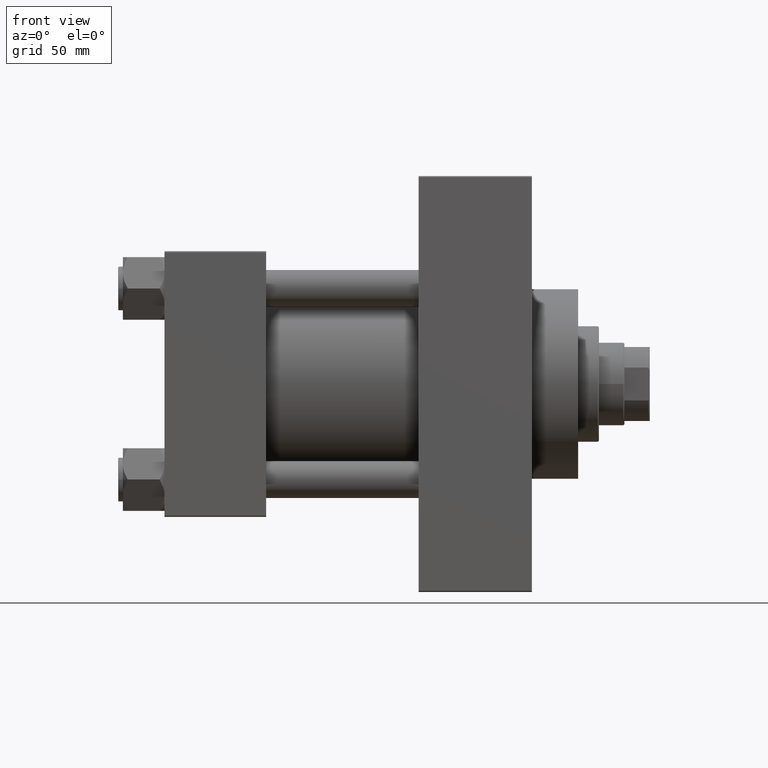
[diagram: clean part render]
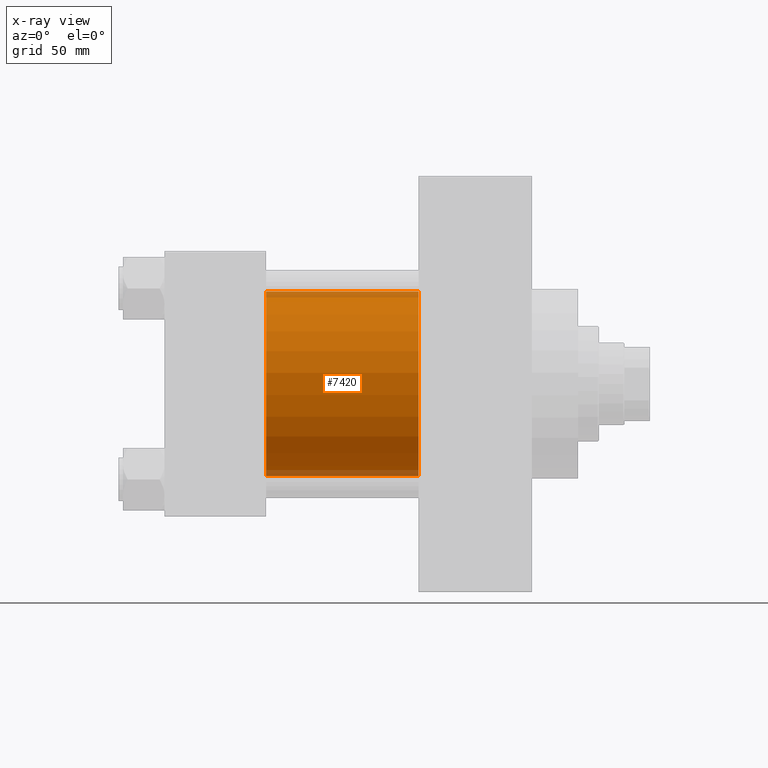
[diagram: x-ray — body ghosted, one internal face saturated and labeled with its STEP entity id]
A machine part, front view, then the same camera in x-ray: the body is ghosted and one INTERNAL B-rep face — a face not visible from any outside direction — is saturated and labeled: STEP entity #7420.
In plain terms, the highlighted cylindrical surface (partial cylindrical patch) has radius 40 mm, axis along (-1, -0, -0).
Its self-contained STEP definition (entity closure, byte-faithful):
#4644 = ORIENTED_EDGE ( 'NONE', *, *, #10828, .T. ) ;
#4770 = VERTEX_POINT ( 'NONE', #31768 ) ;
#5532 = FACE_OUTER_BOUND ( 'NONE', #40714, .T. ) ;
#5784 = DIRECTION ( 'NONE',  ( 0.000000000000000000, 0.000000000000000000, 1.000000000000000000 ) ) ;
#5839 = DIRECTION ( 'NONE',  ( 0.000000000000000000, 0.000000000000000000, -1.000000000000000000 ) ) ;
#6172 = EDGE_CURVE ( 'NONE', #4770, #33677, #35207, .T. ) ;
#6914 = CARTESIAN_POINT ( 'NONE',  ( 44.00000000000000000, 2.296501982624201990E-15, -40.00000000000000000 ) ) ;
#7076 = LINE ( 'NONE', #48349, #39252 ) ;
#7420 = ADVANCED_FACE ( 'NONE', ( #5532 ), #17075, .F. ) ;
#8174 = DIRECTION ( 'NONE',  ( 1.000000000000000000, 0.000000000000000000, 0.000000000000000000 ) ) ;
#10828 = EDGE_CURVE ( 'NONE', #44207, #21038, #48877, .T. ) ;
#12201 = EDGE_CURVE ( 'NONE', #44207, #4770, #7076, .T. ) ;
#12395 = CARTESIAN_POINT ( 'NONE',  ( 110.0000000000000000, 2.296501982624201990E-15, -40.00000000000000000 ) ) ;
#13686 = CARTESIAN_POINT ( 'NONE',  ( 110.0000000000000000, -2.602085213965210642E-15, 40.00000000000000000 ) ) ;
#14126 = DIRECTION ( 'NONE',  ( -1.000000000000000000, -0.000000000000000000, -0.000000000000000000 ) ) ;
#16190 = CARTESIAN_POINT ( 'NONE',  ( 110.0000000000000000, -2.602085213965210642E-15, 0.000000000000000000 ) ) ;
#16585 = CARTESIAN_POINT ( 'NONE',  ( 110.0000000000000000, -2.602085213965210642E-15, 0.000000000000000000 ) ) ;
#17075 = CYLINDRICAL_SURFACE ( 'NONE', #32034, 40.00000000000000000 ) ;
#17255 = DIRECTION ( 'NONE',  ( -1.000000000000000000, -0.000000000000000000, -0.000000000000000000 ) ) ;
#19799 = LINE ( 'NONE', #44471, #42748 ) ;
#21038 = VERTEX_POINT ( 'NONE', #12395 ) ;
#23349 = AXIS2_PLACEMENT_3D ( 'NONE', #16190, #8174, #38424 ) ;
#25281 = EDGE_CURVE ( 'NONE', #21038, #33677, #19799, .T. ) ;
#26739 = ORIENTED_EDGE ( 'NONE', *, *, #25281, .T. ) ;
#28141 = ORIENTED_EDGE ( 'NONE', *, *, #6172, .F. ) ;
#28618 = DIRECTION ( 'NONE',  ( 1.000000000000000000, 0.000000000000000000, 0.000000000000000000 ) ) ;
#31768 = CARTESIAN_POINT ( 'NONE',  ( 44.00000000000000000, -2.602085213965210642E-15, 40.00000000000000000 ) ) ;
#32034 = AXIS2_PLACEMENT_3D ( 'NONE', #16585, #35587, #5784 ) ;
#32169 = ORIENTED_EDGE ( 'NONE', *, *, #12201, .F. ) ;
#33677 = VERTEX_POINT ( 'NONE', #6914 ) ;
#35207 = CIRCLE ( 'NONE', #41546, 40.00000000000000000 ) ;
#35587 = DIRECTION ( 'NONE',  ( -1.000000000000000000, -0.000000000000000000, -0.000000000000000000 ) ) ;
#38424 = DIRECTION ( 'NONE',  ( 0.000000000000000000, 0.000000000000000000, -1.000000000000000000 ) ) ;
#39252 = VECTOR ( 'NONE', #14126, 1000.000000000000000 ) ;
#40714 = EDGE_LOOP ( 'NONE', ( #4644, #26739, #28141, #32169 ) ) ;
#41546 = AXIS2_PLACEMENT_3D ( 'NONE', #47596, #28618, #5839 ) ;
#42748 = VECTOR ( 'NONE', #17255, 1000.000000000000000 ) ;
#44207 = VERTEX_POINT ( 'NONE', #13686 ) ;
#44471 = CARTESIAN_POINT ( 'NONE',  ( 110.0000000000000000, 2.296501982624201990E-15, -40.00000000000000000 ) ) ;
#47596 = CARTESIAN_POINT ( 'NONE',  ( 44.00000000000000000, -2.602085213965210642E-15, 0.000000000000000000 ) ) ;
#48349 = CARTESIAN_POINT ( 'NONE',  ( 110.0000000000000000, -2.602085213965210642E-15, 40.00000000000000000 ) ) ;
#48877 = CIRCLE ( 'NONE', #23349, 40.00000000000000000 ) ;